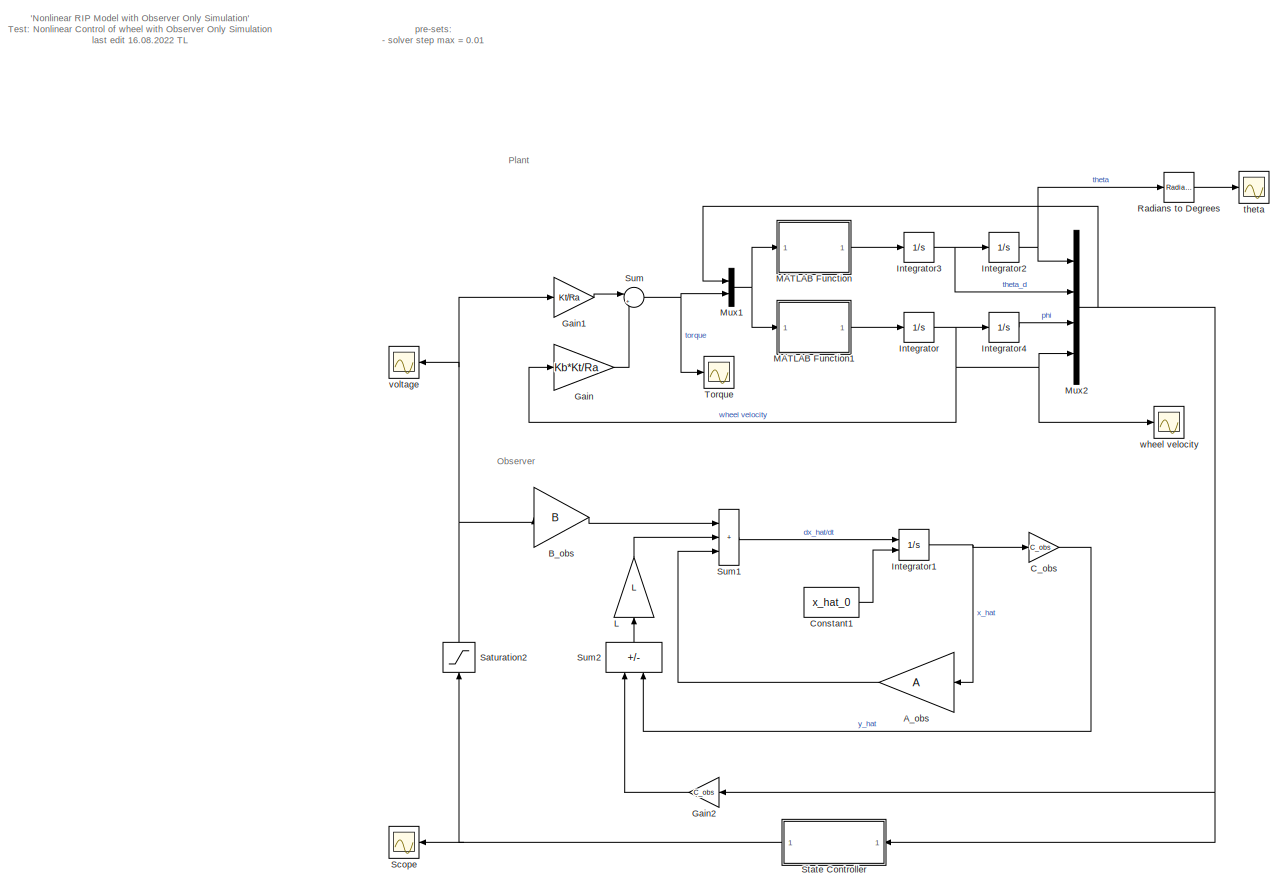
[diagram: root canvas - part 1/1, most of the canvas]
MODEL slx_d6dbb458d632
KIND model
CONFIG AbsTol = auto
CONFIG EnableMultiTasking = on
CONFIG FixedStep = 0.01
CONFIG MaxStep = 1e-3
CONFIG MinStep = 1e-5
CONFIG RelTol = 1e-3
CONFIG SampleTimeConstraint = Unconstrained
CONFIG SolverName = FixedStepAuto
CONFIG StartTime = 0.0
CONFIG StopTime = 10
BLOCK [Gain] A_obs
  Gain = A
  Multiplication = Matrix(K*u)
BLOCK [Gain] B_obs
  Gain = B
  Multiplication = Matrix(K*u)
BLOCK [Gain] C_obs
  Gain = C_obs
  Multiplication = Matrix(K*u)
BLOCK [Constant] Constant1
  Value = x_hat_0
BLOCK [Gain] Gain
  Gain = Kb*Kt/Ra
BLOCK [Gain] Gain1
  Gain = Kt/Ra
BLOCK [Gain] Gain2
  Gain = C_obs
  Multiplication = Matrix(K*u)
  NameLocation = top
BLOCK [Integrator] Integrator
  Ports = [1, 1]
BLOCK [Integrator] Integrator1
  InitialCondition = x0
  InitialConditionSource = external
  Ports = [2, 1]
BLOCK [Integrator] Integrator2
  InitialCondition = theta_0
  Ports = [1, 1]
BLOCK [Integrator] Integrator3
  Ports = [1, 1]
BLOCK [Integrator] Integrator4
  Ports = [1, 1]
BLOCK [Gain] L
  Gain = L
  Multiplication = Matrix(K*u)
  NameLocation = left
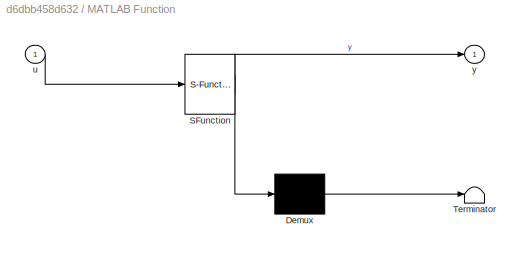
BLOCK [SubSystem] MATLAB Function
  ErrorFcn = Stateflow.Translate.translate
  PermitHierarchicalResolution = ExplicitOnly
  Ports = [1, 1]
  RequestExecContextInheritance = off
  SFBlockType = MATLAB Function
  TreatAsAtomicUnit = on
BLOCK [Demux] MATLAB Function/ Demux 
  Outputs = 1
  Ports = [1, 1]
BLOCK [S-Function] MATLAB Function/ SFunction 
  EnableBusSupport = on
  FunctionName = sf_sfun
  Parameters = J2,a,b,c1,c2,g
  PortCounts = [1 2]
  Ports = [1, 2]
  SFcnIsStateOwnerBlock = off
  SFunctionDeploymentMode = off
  Tag = Stateflow S-Function 2
BLOCK [Terminator] MATLAB Function/ Terminator 
BLOCK [Inport] MATLAB Function/u
BLOCK [Outport] MATLAB Function/y
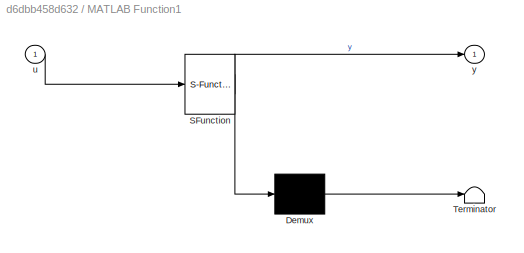
BLOCK [SubSystem] MATLAB Function1
  ErrorFcn = Stateflow.Translate.translate
  PermitHierarchicalResolution = ExplicitOnly
  Ports = [1, 1]
  RequestExecContextInheritance = off
  SFBlockType = MATLAB Function
  TreatAsAtomicUnit = on
BLOCK [Demux] MATLAB Function1/ Demux 
  Outputs = 1
  Ports = [1, 1]
BLOCK [S-Function] MATLAB Function1/ SFunction 
  EnableBusSupport = on
  FunctionName = sf_sfun
  Parameters = J2,a,b,c1,c2,g
  PortCounts = [1 2]
  Ports = [1, 2]
  SFcnIsStateOwnerBlock = off
  SFunctionDeploymentMode = off
  Tag = Stateflow S-Function 1
BLOCK [Terminator] MATLAB Function1/ Terminator 
BLOCK [Inport] MATLAB Function1/u
BLOCK [Outport] MATLAB Function1/y
BLOCK [Mux] Mux1
  DisplayOption = bar
  Inputs = 2
  Ports = [2, 1]
BLOCK [Mux] Mux2
  DisplayOption = bar
  Ports = [4, 1]
BLOCK [Reference] Radians to Degrees  REF=simulink_extras/Transformations/Radians
to Degrees
  Ports = [1, 1]
  SourceBlock = simulink_extras/Transformations/Radians\nto Degrees
  SourceProductBaseCode = SL
  SourceType = RadiansToDegrees
BLOCK [Saturate] Saturation2
  LowerLimit = -12
  NameLocation = right
  UpperLimit = 12
BLOCK [Scope] Scope
  Floating = off
  NameLocation = top
  NumInputPorts = 1
  Ports = [1]
  ScopeSpecificationString = Simulink.scopes.TimeScopeBlockCfg('CurrentConfiguration', extmgr.ConfigurationSet(extmgr.Configuration('Core','General UI',true),extmgr.Configuration('Core','Source UI',true),extmgr.Configuration('Sources','WiredSimulink',true,'DataLoggingVariableName','ScopeData1'),extmgr.Configuration('Visuals','Time Domain',true,'SerializedDisplays',{struct('MinYLimReal','-6.88051','MaxYLimReal','11.36977','YLa...<+1452ch>
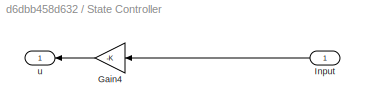
BLOCK [SubSystem] State Controller
  NameLocation = top
  Ports = [1, 1]
  RequestExecContextInheritance = off
BLOCK [Gain] State Controller/Gain4
  Gain = -K
  Multiplication = Matrix(K*u)
  NameLocation = top
BLOCK [Inport] State Controller/Input
  NameLocation = top
BLOCK [Outport] State Controller/u
  NameLocation = top
BLOCK [Sum] Sum
  Inputs = |+-
  Ports = [2, 1]
BLOCK [Sum] Sum1
  IconShape = rectangular
  Inputs = +++
  Ports = [3, 1]
BLOCK [Sum] Sum2
  IconShape = rectangular
  Inputs = +-
  NameLocation = right
  Ports = [2, 1]
BLOCK [Scope] Torque
  Floating = off
  NumInputPorts = 1
  Ports = [1]
  ScopeSpecificationString = Simulink.scopes.TimeScopeBlockCfg('CurrentConfiguration', extmgr.ConfigurationSet(extmgr.Configuration('Core','General UI',true),extmgr.Configuration('Core','Source UI',true),extmgr.Configuration('Sources','WiredSimulink',true),extmgr.Configuration('Visuals','Time Domain',true,'SerializedDisplays',{struct('MinYLimReal','-0.10654','MaxYLimReal','0.23719','YLabelReal','','MinYLimMag','0.00000','MaxY...<+1377ch>
BLOCK [Scope] theta
  Floating = off
  NumInputPorts = 1
  Ports = [1]
  ScopeSpecificationString = Simulink.scopes.TimeScopeBlockCfg('CurrentConfiguration', extmgr.ConfigurationSet(extmgr.Configuration('Core','General UI',true),extmgr.Configuration('Core','Source UI',true),extmgr.Configuration('Sources','WiredSimulink',true,'DataLoggingVariableName','theta_sim','DataLogging',true,'DataLoggingSaveFormat','StructureWithTime'),extmgr.Configuration('Visuals','Time Domain',true,'SerializedDisplays',...<+1504ch>
BLOCK [Scope] voltage
  Floating = off
  NameLocation = top
  NumInputPorts = 1
  Ports = [1]
  ScopeSpecificationString = Simulink.scopes.TimeScopeBlockCfg('CurrentConfiguration', extmgr.ConfigurationSet(extmgr.Configuration('Core','General UI',true),extmgr.Configuration('Core','Source UI',true),extmgr.Configuration('Sources','WiredSimulink',true,'DataLoggingVariableName','ScopeData3'),extmgr.Configuration('Visuals','Time Domain',true,'SerializedDisplays',{struct('MinYLimReal','-6.88051','MaxYLimReal','11.36977','YLa...<+1425ch>
BLOCK [Scope] wheel velocity
  Floating = off
  NumInputPorts = 1
  Ports = [1]
  ScopeSpecificationString = Simulink.scopes.TimeScopeBlockCfg('CurrentConfiguration', extmgr.ConfigurationSet(extmgr.Configuration('Core','General UI',true),extmgr.Configuration('Core','Source UI',true),extmgr.Configuration('Sources','WiredSimulink',true,'DataLoggingVariableName','ScopeData2'),extmgr.Configuration('Visuals','Time Domain',true,'SerializedDisplays',{struct('MinYLimReal','-61.84758','MaxYLimReal','101.19049','Y...<+1434ch>
ANNOTATION (root): 'Nonlinear RIP Model with Observer Only Simulation' Test: Nonlinear Control of wheel with Observer Only Simulation last edit 16.08.2022 TL
ANNOTATION (root): pre-sets: - solver step max = 0.01
ANNOTATION (root): Observer
ANNOTATION (root): Plant
LINE A_obs:1 -> Sum1:3
LINE B_obs:1 -> Sum1:1
LINE C_obs:1 -> Sum2:2
LINE Constant1:1 -> Integrator1:2
LINE Gain1:1 -> Sum:1
LINE Gain2:1 -> Sum2:1
LINE Gain:1 -> Sum:2
NET Integrator1:1 -> A_obs:1, C_obs:1
NET Integrator2:1 -> Mux2:1, Radians to Degrees:1
NET Integrator3:1 -> Integrator2:1, Mux2:2
LINE Integrator4:1 -> Mux2:3
NET Integrator:1 -> Gain:1, Integrator4:1, Mux2:4, wheel velocity:1
LINE L:1 -> Sum1:2
LINE MATLAB Function1:1 -> Integrator:1
LINE MATLAB Function:1 -> Integrator3:1
NET Mux1:1 -> MATLAB Function1:1, MATLAB Function:1
NET Mux2:1 -> Gain2:1, Mux1:1, State Controller:1
LINE Radians to Degrees:1 -> theta:1
NET Saturation2:1 -> B_obs:1, Gain1:1, voltage:1
LINE State Controller/Gain4:1 -> State Controller/u:1
LINE State Controller/Input:1 -> State Controller/Gain4:1
NET State Controller:1 -> Saturation2:1, Scope:1
LINE Sum1:1 -> Integrator1:1
LINE Sum2:1 -> L:1
NET Sum:1 -> Mux1:2, Torque:1
note: NET lines group one-source signal fan-out (src -> all destinations, sorted); 1:1 wires keep LINE
CHART MATLAB Function1 states=1 transitions=1
  STATE_LABEL 'eML_blk_kernel()'
  STATE_LABEL 'SCRIPT:\nfunction y = fcn(u, a, b, g, c1, c2, J2)\n\ny = (a*u(5)/J2+c1*u(2)-b*g*sin(u(1))-a*c2*u(4)/J2)/(a-J2);\n'
CHART MATLAB Function states=1 transitions=1
  STATE_LABEL 'eML_blk_kernel()'
  STATE_LABEL 'SCRIPT:\nfunction y = fcn(u, a, b, g, c1, c2, J2)\n\ny = (b*g*sin(u(1))-c1*u(2)+c2*u(4)-u(5))/(a-J2);\n'
CHART  states=0 transitions=0
CHART  states=0 transitions=0
